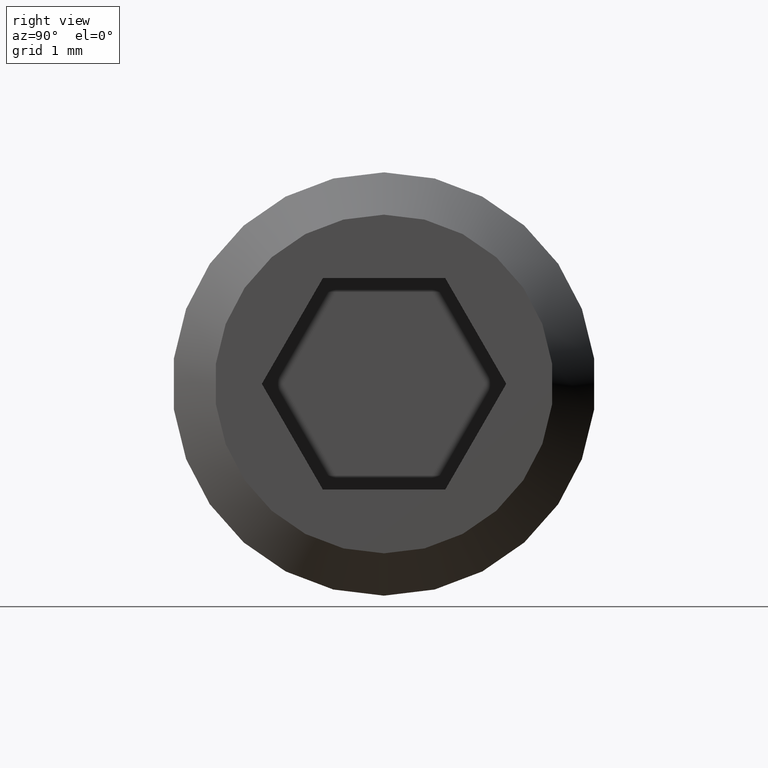
[diagram: clean part render]
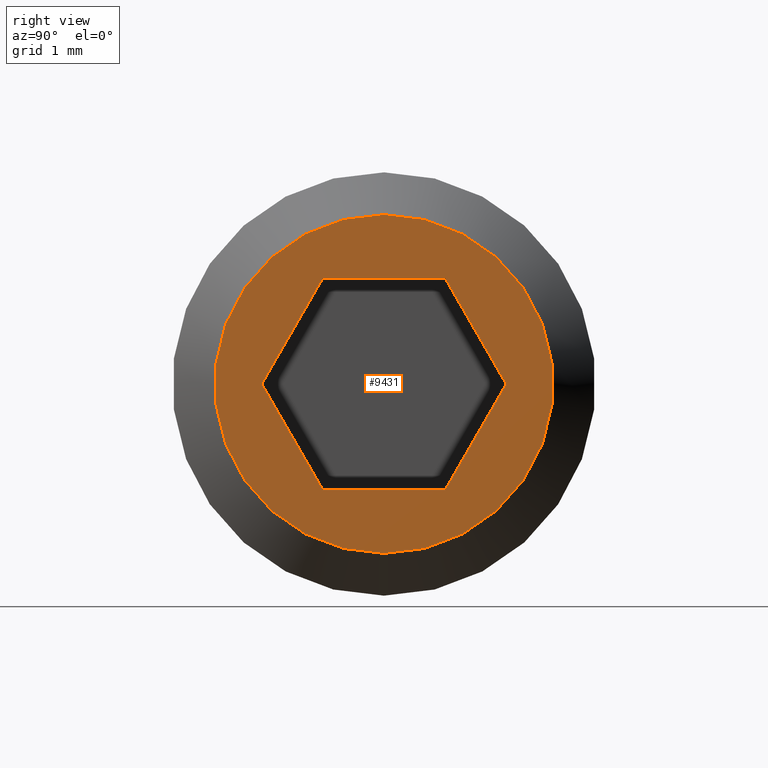
[diagram: same view with one face highlighted and labeled with its STEP entity id]
A machine part, right view. The second image highlights one B-rep face of the part: STEP entity #9431.
In plain terms, the highlighted planar face has unit normal (1, 0, 0).
Its self-contained STEP definition (entity closure, byte-faithful):
#431 = VECTOR ( 'NONE', #7477, 1000.000000000000100 ) ;
#485 = LINE ( 'NONE', #1594, #8790 ) ;
#511 = DIRECTION ( 'NONE',  ( 1.000000000000000000, 0.0000000000000000000, 0.0000000000000000000 ) ) ;
#791 = ORIENTED_EDGE ( 'NONE', *, *, #9802, .F. ) ;
#1594 = CARTESIAN_POINT ( 'NONE',  ( 6.000000000000000000, -1.732050807568877000, 4.566523201967821500E-016 ) ) ;
#2084 = CARTESIAN_POINT ( 'NONE',  ( 6.000000000000000000, -0.8660254037844380400, 1.500000000000000000 ) ) ;
#2174 = VECTOR ( 'NONE', #7798, 1000.000000000000000 ) ;
#2626 = EDGE_CURVE ( 'NONE', #10735, #4256, #2858, .T. ) ;
#2773 = EDGE_CURVE ( 'NONE', #7934, #8188, #485, .T. ) ;
#2858 = LINE ( 'NONE', #8204, #6663 ) ;
#3130 = VERTEX_POINT ( 'NONE', #2084 ) ;
#3460 = CARTESIAN_POINT ( 'NONE',  ( 6.000000000000000000, 0.8660254037844393700, 1.500000000000000000 ) ) ;
#3749 = VERTEX_POINT ( 'NONE', #7335 ) ;
#3902 = EDGE_LOOP ( 'NONE', ( #6158, #9292, #6882, #791, #8590, #9834 ) ) ;
#3925 = FACE_OUTER_BOUND ( 'NONE', #8796, .T. ) ;
#4030 = PLANE ( 'NONE',  #6490 ) ;
#4172 = DIRECTION ( 'NONE',  ( 0.0000000000000000000, -0.5000000000000002200, -0.8660254037844384900 ) ) ;
#4250 = VECTOR ( 'NONE', #4172, 1000.000000000000200 ) ;
#4256 = VERTEX_POINT ( 'NONE', #9251 ) ;
#4614 = CARTESIAN_POINT ( 'NONE',  ( 6.000000000000000000, 0.0000000000000000000, 0.0000000000000000000 ) ) ;
#4824 = CARTESIAN_POINT ( 'NONE',  ( 6.000000000000000000, 1.732050807568877900, 4.034455522966426400E-016 ) ) ;
#4850 = LINE ( 'NONE', #10681, #431 ) ;
#4873 = AXIS2_PLACEMENT_3D ( 'NONE', #4614, #511, #8888 ) ;
#5076 = CARTESIAN_POINT ( 'NONE',  ( 6.000000000000000000, 0.0000000000000000000, -2.400000000000001200 ) ) ;
#5177 = VECTOR ( 'NONE', #10055, 1000.000000000000000 ) ;
#5712 = CARTESIAN_POINT ( 'NONE',  ( 6.000000000000000000, 0.0000000000000000000, 0.0000000000000000000 ) ) ;
#5948 = LINE ( 'NONE', #6974, #2174 ) ;
#6158 = ORIENTED_EDGE ( 'NONE', *, *, #7309, .F. ) ;
#6397 = CARTESIAN_POINT ( 'NONE',  ( 6.000000000000000000, -0.8660254037844388200, -1.499999999999999800 ) ) ;
#6480 = LINE ( 'NONE', #9134, #4250 ) ;
#6490 = AXIS2_PLACEMENT_3D ( 'NONE', #5712, #8029, #8857 ) ;
#6614 = EDGE_CURVE ( 'NONE', #4256, #3130, #7652, .T. ) ;
#6663 = VECTOR ( 'NONE', #8953, 1000.000000000000200 ) ;
#6823 = EDGE_CURVE ( 'NONE', #8188, #3749, #5948, .T. ) ;
#6882 = ORIENTED_EDGE ( 'NONE', *, *, #2626, .F. ) ;
#6974 = CARTESIAN_POINT ( 'NONE',  ( 6.000000000000000000, -0.8660254037844388200, -1.499999999999999800 ) ) ;
#7309 = EDGE_CURVE ( 'NONE', #3130, #7934, #6480, .T. ) ;
#7335 = CARTESIAN_POINT ( 'NONE',  ( 6.000000000000000000, 0.8660254037844389300, -1.499999999999999800 ) ) ;
#7477 = DIRECTION ( 'NONE',  ( 0.0000000000000000000, 0.5000000000000001100, 0.8660254037844386000 ) ) ;
#7652 = LINE ( 'NONE', #3460, #5177 ) ;
#7798 = DIRECTION ( 'NONE',  ( 0.0000000000000000000, 1.000000000000000000, 0.0000000000000000000 ) ) ;
#7934 = VERTEX_POINT ( 'NONE', #10036 ) ;
#8029 = DIRECTION ( 'NONE',  ( 1.000000000000000000, 0.0000000000000000000, 0.0000000000000000000 ) ) ;
#8041 = ORIENTED_EDGE ( 'NONE', *, *, #9299, .T. ) ;
#8188 = VERTEX_POINT ( 'NONE', #6397 ) ;
#8204 = CARTESIAN_POINT ( 'NONE',  ( 6.000000000000000000, 1.732050807568877900, 4.034455522966426400E-016 ) ) ;
#8238 = DIRECTION ( 'NONE',  ( 0.0000000000000000000, 0.4999999999999997200, -0.8660254037844388200 ) ) ;
#8590 = ORIENTED_EDGE ( 'NONE', *, *, #6823, .F. ) ;
#8593 = FACE_BOUND ( 'NONE', #3902, .T. ) ;
#8790 = VECTOR ( 'NONE', #8238, 1000.000000000000100 ) ;
#8796 = EDGE_LOOP ( 'NONE', ( #8041 ) ) ;
#8853 = CIRCLE ( 'NONE', #4873, 2.400000000000001200 ) ;
#8857 = DIRECTION ( 'NONE',  ( 0.0000000000000000000, 0.0000000000000000000, -1.000000000000000000 ) ) ;
#8888 = DIRECTION ( 'NONE',  ( 0.0000000000000000000, 0.0000000000000000000, -1.000000000000000000 ) ) ;
#8953 = DIRECTION ( 'NONE',  ( 0.0000000000000000000, -0.5000000000000000000, 0.8660254037844386000 ) ) ;
#9134 = CARTESIAN_POINT ( 'NONE',  ( 6.000000000000000000, -0.8660254037844380400, 1.500000000000000000 ) ) ;
#9251 = CARTESIAN_POINT ( 'NONE',  ( 6.000000000000000000, 0.8660254037844393700, 1.500000000000000000 ) ) ;
#9292 = ORIENTED_EDGE ( 'NONE', *, *, #6614, .F. ) ;
#9299 = EDGE_CURVE ( 'NONE', #10140, #10140, #8853, .T. ) ;
#9431 = ADVANCED_FACE ( 'NONE', ( #8593, #3925 ), #4030, .T. ) ;
#9802 = EDGE_CURVE ( 'NONE', #3749, #10735, #4850, .T. ) ;
#9834 = ORIENTED_EDGE ( 'NONE', *, *, #2773, .F. ) ;
#10036 = CARTESIAN_POINT ( 'NONE',  ( 6.000000000000000000, -1.732050807568877200, 5.421010862427522200E-016 ) ) ;
#10055 = DIRECTION ( 'NONE',  ( 0.0000000000000000000, -1.000000000000000000, 0.0000000000000000000 ) ) ;
#10140 = VERTEX_POINT ( 'NONE', #5076 ) ;
#10681 = CARTESIAN_POINT ( 'NONE',  ( 6.000000000000000000, 0.8660254037844389300, -1.499999999999999800 ) ) ;
#10735 = VERTEX_POINT ( 'NONE', #4824 ) ;